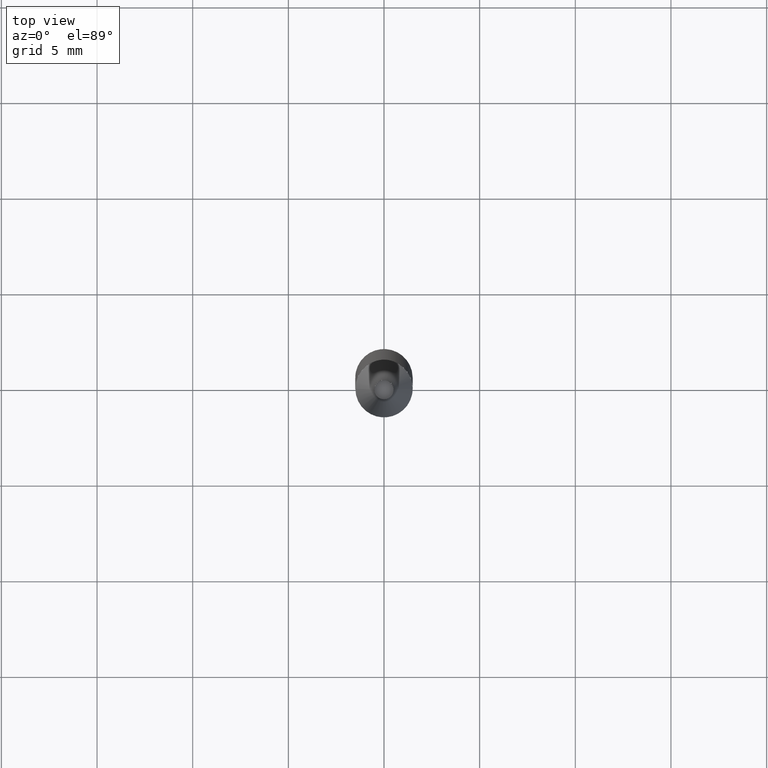
[diagram: clean part render]
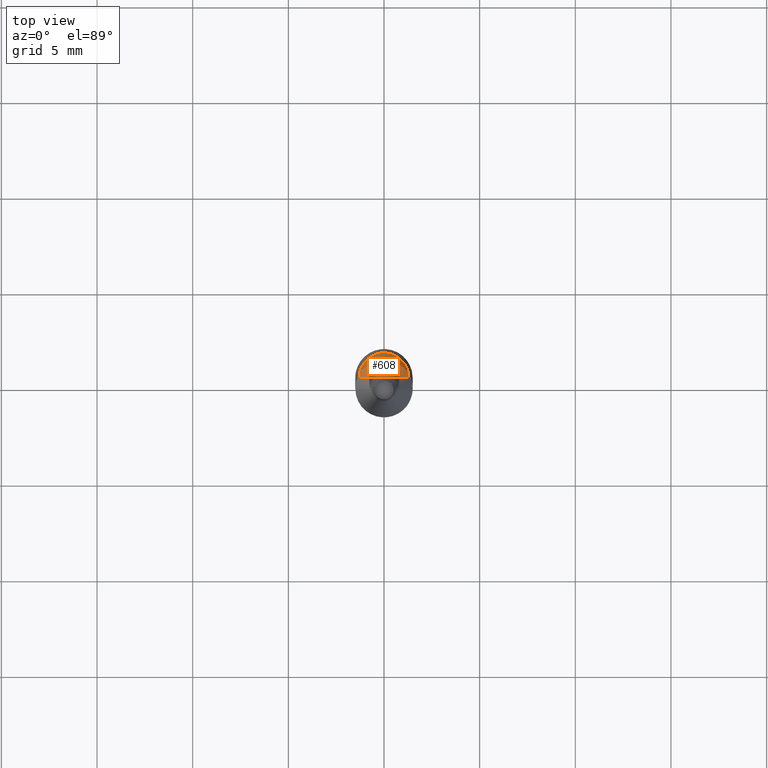
[diagram: same view with one face highlighted and labeled with its STEP entity id]
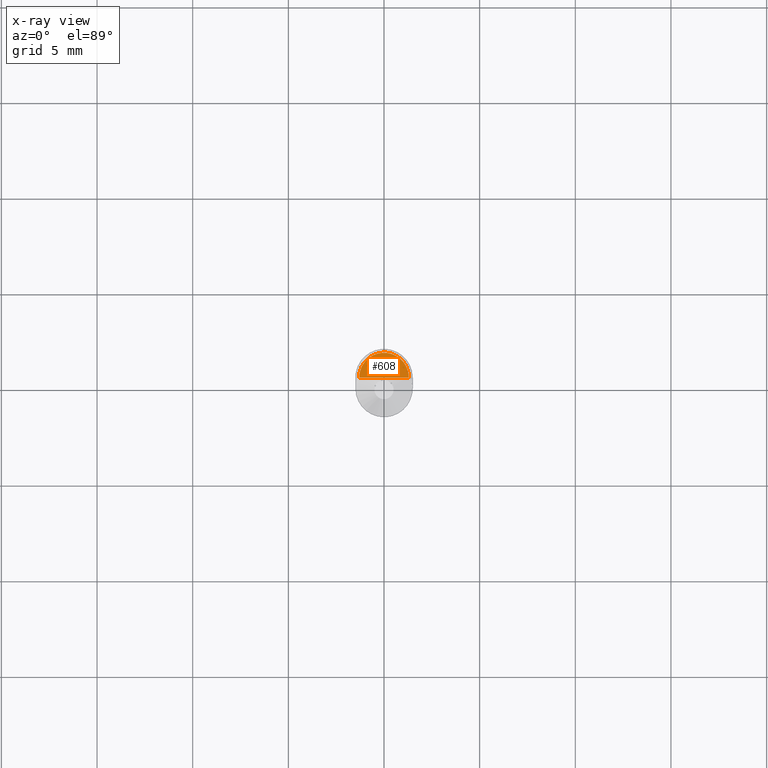
[diagram: x-ray of the same camera — body ghosted, the highlighted face saturated]
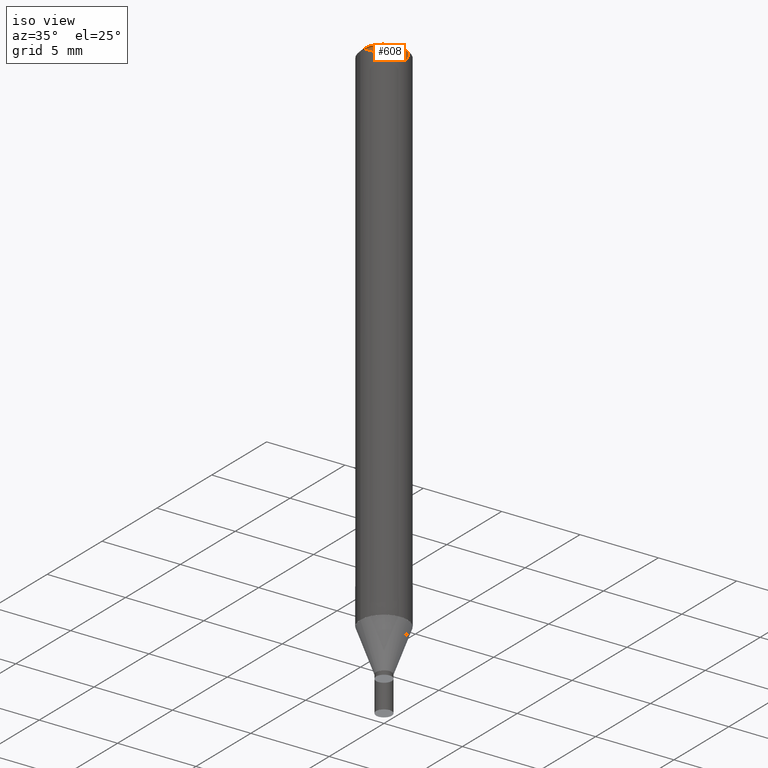
[diagram: same view with one face highlighted and labeled with its STEP entity id]
A machine part, top view. The second image highlights one B-rep face of the part: STEP entity #608.
The next image is the same camera in x-ray: the body ghosted, the highlighted face saturated — about 0% of this face is hidden behind the body in this view.
A second angle (iso view) of the same face is appended — the face is thin or edge-on in the first view.
In plain terms, the highlighted face is a freeform B-spline surface patch.
Its self-contained STEP definition (entity closure, byte-faithful):
#365=CARTESIAN_POINT('',(1.3,0.0,33.0));
#366=CARTESIAN_POINT('',(1.3,1.3,33.0));
#367=CARTESIAN_POINT('',(0.0,1.3,33.0));
#368=CARTESIAN_POINT('',(-1.3,1.3,33.0));
#369=CARTESIAN_POINT('',(-1.3,0.0,33.0));
#370=CARTESIAN_POINT('',(0.0,0.0,33.0));
#593=(
BOUNDED_SURFACE()
B_SPLINE_SURFACE(1,2,(
(#365,#366,#367,#368,#369),
(#370,#370,#370,#370,#370)
), .UNSPECIFIED.,.F.,.F.,.F.)
B_SPLINE_SURFACE_WITH_KNOTS((2,2),(3,2,3),(
0.0,1.0),(
0.0,0.5,1.0), .UNSPECIFIED.)
GEOMETRIC_REPRESENTATION_ITEM()
RATIONAL_B_SPLINE_SURFACE(((1.0,0.707106781187,1.0,0.707106781187,1.0),
(1.0,0.707106781187,1.0,0.707106781187,1.0)
))
REPRESENTATION_ITEM('')
SURFACE()
);
#594=(
BOUNDED_CURVE()
B_SPLINE_CURVE(2,(#369,#368,#367,#366,#365),.UNSPECIFIED.,.F.,.F.)
B_SPLINE_CURVE_WITH_KNOTS((3,2,3),
(0.0,0.5,1.0),.UNSPECIFIED.)
CURVE()
GEOMETRIC_REPRESENTATION_ITEM()
RATIONAL_B_SPLINE_CURVE((1.0,0.707106781187,1.0,0.707106781187,1.0))
REPRESENTATION_ITEM('')
);
#595=(
BOUNDED_CURVE()
B_SPLINE_CURVE(1,(#365,#370),.UNSPECIFIED.,.F.,.F.)
B_SPLINE_CURVE_WITH_KNOTS((2,2),
(0.0,1.0),.UNSPECIFIED.)
CURVE()
GEOMETRIC_REPRESENTATION_ITEM()
RATIONAL_B_SPLINE_CURVE((1.0,1.0))
REPRESENTATION_ITEM('')
);
#596=(
BOUNDED_CURVE()
B_SPLINE_CURVE(1,(#370,#369),.UNSPECIFIED.,.F.,.F.)
B_SPLINE_CURVE_WITH_KNOTS((2,2),
(0.0,1.0),.UNSPECIFIED.)
CURVE()
GEOMETRIC_REPRESENTATION_ITEM()
RATIONAL_B_SPLINE_CURVE((1.0,1.0))
REPRESENTATION_ITEM('')
);
#597=VERTEX_POINT('',#365);
#598=VERTEX_POINT('',#369);
#599=VERTEX_POINT('',#370);
#600=EDGE_CURVE('',#598,#597,#594,.T.);
#601=EDGE_CURVE('',#597,#599,#595,.T.);
#602=EDGE_CURVE('',#599,#598,#596,.T.);
#603=ORIENTED_EDGE('',*,*,#600,.T.);
#604=ORIENTED_EDGE('',*,*,#601,.T.);
#605=ORIENTED_EDGE('',*,*,#602,.T.);
#606=EDGE_LOOP('',(#603,#604,#605));
#607=FACE_OUTER_BOUND('',#606,.T.);
#608=ADVANCED_FACE('',(#607),#593,.T.);